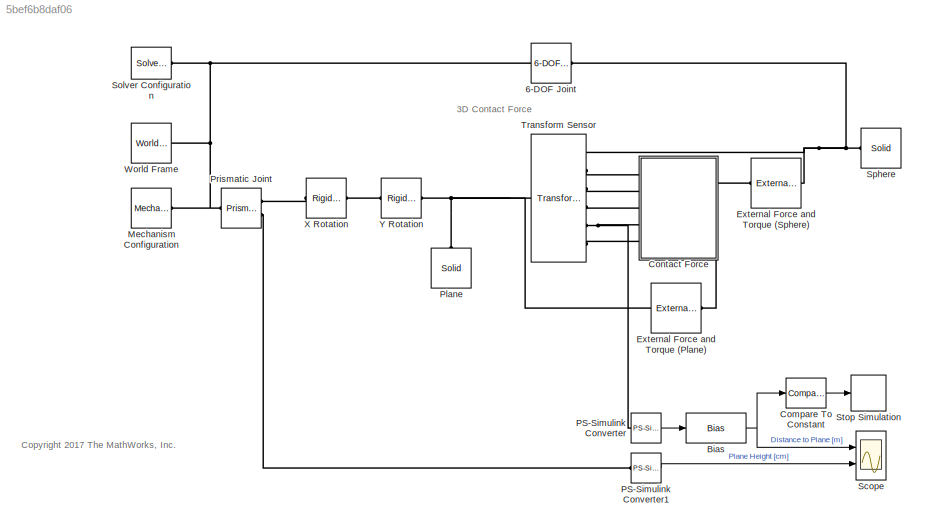
MODEL slx_5bef6b8daf06
KIND model
CONFIG AbsTol = auto
CONFIG EnableMultiTasking = on
CONFIG FixedStep = auto
CONFIG MaxStep = auto
CONFIG MinStep = auto
CONFIG PreLoadFcn = % Initial sphere position\nx0 = 0; % m\ny0 = 0; % m\nz0 = 5; % m\n\n% Plane dimensions\nxPlane = 20; % m\nyPlane = 20; % m\n\n% Plane rotation\nxRot = 15; % deg\nyRot = 10; % deg\n\n% Sphere dimensions\nsphRad = 0.5; % m
CONFIG RelTol = 1e-3
CONFIG SampleTimeConstraint = Unconstrained
CONFIG Solver = ode23t
CONFIG SolverName = ode23t
CONFIG StartTime = 0.0
CONFIG StopTime = 10.0
BLOCK [Reference] 6-DOF Joint  REF=sm_lib/Joints/6-DOF Joint
  Ports = [0, 0, 0, 0, 0, 1, 1]
  SourceBlock = sm_lib/Joints/6-DOF Joint
  SourceProductBaseCode = MS
  SourceProductName = Simscape Multibody
  SourceType = 6-DOF Joint
BLOCK [Bias] Bias
  Bias = -sphRad
  SaturateOnIntegerOverflow = off
BLOCK [Reference] Compare To Constant  REF=simulink/Logic and Bit
Operations/Compare
To Constant
  Ports = [1, 1]
  SourceBlock = simulink/Logic and Bit\nOperations/Compare\nTo Constant
  SourceProductBaseCode = SL
  SourceProductName = Simulink
  SourceType = Compare To Constant
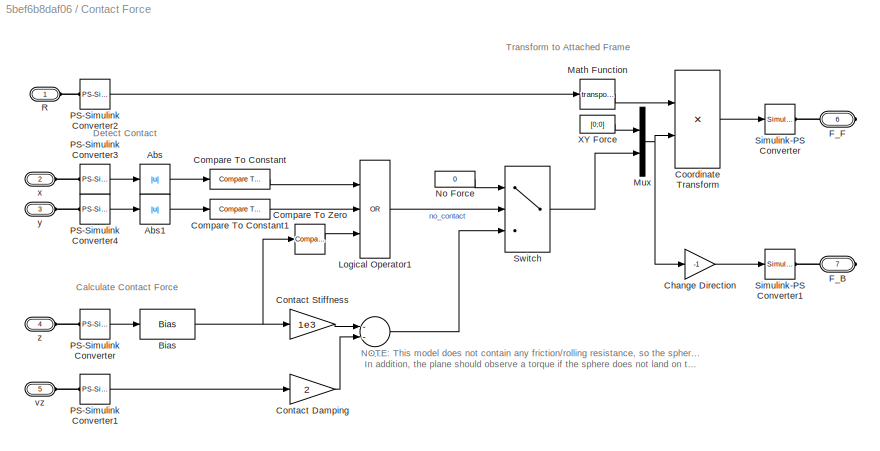
BLOCK [SubSystem] Contact Force
  Ports = [0, 0, 0, 0, 0, 5, 2]
  RequestExecContextInheritance = off
  Variant = off
BLOCK [Abs] Contact Force/Abs
  SaturateOnIntegerOverflow = off
BLOCK [Abs] Contact Force/Abs1
  SaturateOnIntegerOverflow = off
BLOCK [Sum] Contact Force/Add
  InputSameDT = off
  Inputs = --
  OutDataTypeStr = Inherit: Inherit via internal rule
  Ports = [2, 1]
  SaturateOnIntegerOverflow = off
BLOCK [Bias] Contact Force/Bias
  Bias = -sphRad
  SaturateOnIntegerOverflow = off
BLOCK [Gain] Contact Force/Change Direction
  Gain = -1
  OutDataTypeStr = Inherit: Inherit via internal rule
  ParamDataTypeStr = Inherit: Inherit via internal rule
  SaturateOnIntegerOverflow = off
BLOCK [Reference] Contact Force/Compare To Constant  REF=simulink/Logic and Bit
Operations/Compare
To Constant
  Ports = [1, 1]
  SourceBlock = simulink/Logic and Bit\nOperations/Compare\nTo Constant
  SourceProductBaseCode = SL
  SourceProductName = Simulink
  SourceType = Compare To Constant
BLOCK [Reference] Contact Force/Compare To Constant1  REF=simulink/Logic and Bit
Operations/Compare
To Constant
  Ports = [1, 1]
  SourceBlock = simulink/Logic and Bit\nOperations/Compare\nTo Constant
  SourceProductBaseCode = SL
  SourceProductName = Simulink
  SourceType = Compare To Constant
BLOCK [Reference] Contact Force/Compare To Zero  REF=simulink/Logic and Bit
Operations/Compare
To Zero
  Ports = [1, 1]
  SourceBlock = simulink/Logic and Bit\nOperations/Compare\nTo Zero
  SourceProductBaseCode = SL
  SourceProductName = Simulink
  SourceType = Compare To Zero
BLOCK [Gain] Contact Force/Contact Damping
  Gain = 2
  OutDataTypeStr = Inherit: Inherit via internal rule
  ParamDataTypeStr = Inherit: Inherit via internal rule
  SaturateOnIntegerOverflow = off
BLOCK [Gain] Contact Force/Contact Stiffness
  Gain = 1e3
  OutDataTypeStr = Inherit: Inherit via internal rule
  ParamDataTypeStr = Inherit: Inherit via internal rule
  SaturateOnIntegerOverflow = off
BLOCK [Product] Contact Force/Coordinate Transform
  InputSameDT = off
  Multiplication = Matrix(*)
  OutDataTypeStr = Inherit: Inherit via internal rule
  Ports = [2, 1]
  RndMeth = Floor
  SaturateOnIntegerOverflow = off
BLOCK [PMIOPort] Contact Force/F_B
  Port = 7
  Side = Right
BLOCK [PMIOPort] Contact Force/F_F
  Port = 6
  Side = Right
BLOCK [Logic] Contact Force/Logical Operator1
  AllPortsSameDT = off
  Inputs = 3
  Operator = OR
  OutDataTypeStr = boolean
  Ports = [3, 1]
BLOCK [Math] Contact Force/Math Function
  Operator = transpose
  Ports = [1, 1]
BLOCK [Mux] Contact Force/Mux
  DisplayOption = bar
  Inputs = 2
  Ports = [2, 1]
BLOCK [Constant] Contact Force/No Force
  Value = 0
BLOCK [Reference] Contact Force/PS-Simulink Converter  REF=nesl_utility/PS-Simulink
Converter
  Ports = [0, 1, 0, 0, 0, 1]
  SourceBlock = nesl_utility/PS-Simulink\nConverter
  SourceProductBaseCode = SS
  SourceProductName = Simscape
  SourceType = PS-Simulink\nConverter
BLOCK [Reference] Contact Force/PS-Simulink Converter1  REF=nesl_utility/PS-Simulink
Converter
  Ports = [0, 1, 0, 0, 0, 1]
  SourceBlock = nesl_utility/PS-Simulink\nConverter
  SourceProductBaseCode = SS
  SourceProductName = Simscape
  SourceType = PS-Simulink\nConverter
BLOCK [Reference] Contact Force/PS-Simulink Converter2  REF=nesl_utility/PS-Simulink
Converter
  Ports = [0, 1, 0, 0, 0, 1]
  SourceBlock = nesl_utility/PS-Simulink\nConverter
  SourceProductBaseCode = SS
  SourceProductName = Simscape
  SourceType = PS-Simulink\nConverter
BLOCK [Reference] Contact Force/PS-Simulink Converter3  REF=nesl_utility/PS-Simulink
Converter
  Ports = [0, 1, 0, 0, 0, 1]
  SourceBlock = nesl_utility/PS-Simulink\nConverter
  SourceProductBaseCode = SS
  SourceProductName = Simscape
  SourceType = PS-Simulink\nConverter
BLOCK [Reference] Contact Force/PS-Simulink Converter4  REF=nesl_utility/PS-Simulink
Converter
  Ports = [0, 1, 0, 0, 0, 1]
  SourceBlock = nesl_utility/PS-Simulink\nConverter
  SourceProductBaseCode = SS
  SourceProductName = Simscape
  SourceType = PS-Simulink\nConverter
BLOCK [PMIOPort] Contact Force/R
  Port = 1
  Side = Left
BLOCK [Reference] Contact Force/Simulink-PS Converter  REF=nesl_utility/Simulink-PS
Converter
  Ports = [1, 0, 0, 0, 0, 0, 1]
  SourceBlock = nesl_utility/Simulink-PS\nConverter
  SourceProductBaseCode = SS
  SourceProductName = Simscape
  SourceType = Simulink-PS\nConverter
BLOCK [Reference] Contact Force/Simulink-PS Converter1  REF=nesl_utility/Simulink-PS
Converter
  Ports = [1, 0, 0, 0, 0, 0, 1]
  SourceBlock = nesl_utility/Simulink-PS\nConverter
  SourceProductBaseCode = SS
  SourceProductName = Simscape
  SourceType = Simulink-PS\nConverter
BLOCK [Switch] Contact Force/Switch
  Criteria = u2 > Threshold
  InputSameDT = off
  SaturateOnIntegerOverflow = off
BLOCK [Constant] Contact Force/XY Force
  Value = [0;0]
BLOCK [PMIOPort] Contact Force/vz
  Port = 5
  Side = Left
BLOCK [PMIOPort] Contact Force/x
  Port = 2
  Side = Left
BLOCK [PMIOPort] Contact Force/y
  Port = 3
  Side = Left
BLOCK [PMIOPort] Contact Force/z
  Port = 4
  Side = Left
BLOCK [Reference] External Force and Torque (Plane)  REF=sm_lib/Forces and
Torques/External Force
and Torque
  Ports = [0, 0, 0, 0, 0, 1, 1]
  SourceBlock = sm_lib/Forces and\nTorques/External Force\nand Torque
  SourceProductBaseCode = MS
  SourceProductName = Simscape Multibody
  SourceType = External Force\nand Torque
BLOCK [Reference] External Force and Torque (Sphere)  REF=sm_lib/Forces and
Torques/External Force
and Torque
  Ports = [0, 0, 0, 0, 0, 1, 1]
  SourceBlock = sm_lib/Forces and\nTorques/External Force\nand Torque
  SourceProductBaseCode = MS
  SourceProductName = Simscape Multibody
  SourceType = External Force\nand Torque
BLOCK [Reference] Mechanism Configuration  REF=sm_lib/Utilities/Mechanism
Configuration
  Ports = [0, 0, 0, 0, 0, 0, 1]
  SourceBlock = sm_lib/Utilities/Mechanism\nConfiguration
  SourceProductBaseCode = MS
  SourceProductName = Simscape Multibody
  SourceType = Mechanism\nConfiguration
BLOCK [Reference] PS-Simulink Converter  REF=nesl_utility/PS-Simulink
Converter
  Ports = [0, 1, 0, 0, 0, 1]
  SourceBlock = nesl_utility/PS-Simulink\nConverter
  SourceProductBaseCode = SS
  SourceProductName = Simscape
  SourceType = PS-Simulink\nConverter
BLOCK [Reference] PS-Simulink Converter1  REF=nesl_utility/PS-Simulink
Converter
  Ports = [0, 1, 0, 0, 0, 1]
  SourceBlock = nesl_utility/PS-Simulink\nConverter
  SourceProductBaseCode = SS
  SourceProductName = Simscape
  SourceType = PS-Simulink\nConverter
BLOCK [Reference] Plane  REF=sm_lib/Body Elements/Solid
  Ports = [0, 0, 0, 0, 0, 0, 1]
  SourceBlock = sm_lib/Body Elements/Solid
  SourceProductBaseCode = MS
  SourceProductName = Simscape Multibody
  SourceType = Solid
BLOCK [Reference] Prismatic Joint  REF=sm_lib/Joints/Prismatic
Joint
  Ports = [0, 0, 0, 0, 0, 1, 2]
  SourceBlock = sm_lib/Joints/Prismatic\nJoint
  SourceProductBaseCode = MS
  SourceProductName = Simscape Multibody
  SourceType = Prismatic\nJoint
BLOCK [Scope] Scope
  NumInputPorts = 2
  Ports = [2]
  ScopeSpecificationString = Simulink.scopes.TimeScopeBlockCfg('CurrentConfiguration', extmgr.ConfigurationSet(extmgr.Configuration('Core','General UI',true),extmgr.Configuration('Core','Source UI',true),extmgr.Configuration('Sources','WiredSimulink',true,'DataLoggingSaveFormat','Array','DataLoggingDecimation','1','DataLoggingDecimateData',true),extmgr.Configuration('Visuals','Time Domain',true,'SerializedDisplays',{struct('M...<+2268ch>
BLOCK [Reference] Solver Configuration  REF=nesl_utility/Solver
Configuration
  Ports = [0, 0, 0, 0, 0, 0, 1]
  SourceBlock = nesl_utility/Solver\nConfiguration
  SourceProductBaseCode = SS
  SourceProductName = Simscape
  SourceType = Solver\nConfiguration
BLOCK [Reference] Sphere  REF=sm_lib/Body Elements/Solid
  Ports = [0, 0, 0, 0, 0, 0, 1]
  SourceBlock = sm_lib/Body Elements/Solid
  SourceProductBaseCode = MS
  SourceProductName = Simscape Multibody
  SourceType = Solid
BLOCK [Stop] Stop Simulation
BLOCK [Reference] Transform Sensor  REF=sm_lib/Frames and
Transforms/Transform
Sensor
  Ports = [0, 0, 0, 0, 0, 1, 6]
  SourceBlock = sm_lib/Frames and\nTransforms/Transform\nSensor
  SourceProductBaseCode = MS
  SourceProductName = Simscape Multibody
  SourceType = Transform\nSensor
BLOCK [Reference] World Frame  REF=sm_lib/Frames and
Transforms/World Frame
  Ports = [0, 0, 0, 0, 0, 0, 1]
  SourceBlock = sm_lib/Frames and\nTransforms/World Frame
  SourceProductBaseCode = MS
  SourceProductName = Simscape Multibody
  SourceType = World Frame
BLOCK [Reference] X Rotation  REF=sm_lib/Frames and
Transforms/Rigid
Transform
  Ports = [0, 0, 0, 0, 0, 1, 1]
  SourceBlock = sm_lib/Frames and\nTransforms/Rigid\nTransform
  SourceProductBaseCode = MS
  SourceProductName = Simscape Multibody
  SourceType = Rigid\nTransform
BLOCK [Reference] Y Rotation  REF=sm_lib/Frames and
Transforms/Rigid
Transform
  Ports = [0, 0, 0, 0, 0, 1, 1]
  SourceBlock = sm_lib/Frames and\nTransforms/Rigid\nTransform
  SourceProductBaseCode = MS
  SourceProductName = Simscape Multibody
  SourceType = Rigid\nTransform
ANNOTATION (root): 3D Contact Force
ANNOTATION (root): <copyright redacted>
ANNOTATION Contact Force: NOTE: This model does not contain any friction/rolling resistance, so the sphere will not rotate. In addition, the plane should observe a torque if the sphere does not land on the plane's center of mass. For simplicity, this effect is not included.
ANNOTATION Contact Force: Calculate Contact Force
ANNOTATION Contact Force: Detect Contact
ANNOTATION Contact Force: Transform to Attached Frame
NET Bias:1 -> Compare To Constant:1, Scope:1
LINE Compare To Constant:1 -> Stop Simulation:1
LINE Contact Force/Abs1:1 -> Contact Force/Compare To Constant1:1
LINE Contact Force/Abs:1 -> Contact Force/Compare To Constant:1
LINE Contact Force/Add:1 -> Contact Force/Switch:3
NET Contact Force/Bias:1 -> Contact Force/Compare To Zero:1, Contact Force/Contact Stiffness:1
LINE Contact Force/Change Direction:1 -> Contact Force/Simulink-PS Converter1:1
LINE Contact Force/Compare To Constant1:1 -> Contact Force/Logical Operator1:2
LINE Contact Force/Compare To Constant:1 -> Contact Force/Logical Operator1:1
LINE Contact Force/Compare To Zero:1 -> Contact Force/Logical Operator1:3
LINE Contact Force/Contact Damping:1 -> Contact Force/Add:2
LINE Contact Force/Contact Stiffness:1 -> Contact Force/Add:1
LINE Contact Force/Coordinate Transform:1 -> Contact Force/Simulink-PS Converter:1
LINE Contact Force/Logical Operator1:1 -> Contact Force/Switch:2
LINE Contact Force/Math Function:1 -> Contact Force/Coordinate Transform:1
NET Contact Force/Mux:1 -> Contact Force/Change Direction:1, Contact Force/Coordinate Transform:2
LINE Contact Force/No Force:1 -> Contact Force/Switch:1
LINE Contact Force/PS-Simulink Converter1:1 -> Contact Force/Contact Damping:1
LINE Contact Force/PS-Simulink Converter2:1 -> Contact Force/Math Function:1
LINE Contact Force/PS-Simulink Converter3:1 -> Contact Force/Abs:1
LINE Contact Force/PS-Simulink Converter4:1 -> Contact Force/Abs1:1
LINE Contact Force/PS-Simulink Converter:1 -> Contact Force/Bias:1
LINE Contact Force/Switch:1 -> Contact Force/Mux:2
LINE Contact Force/XY Force:1 -> Contact Force/Mux:1
LINE PS-Simulink Converter1:1 -> Scope:2
LINE PS-Simulink Converter:1 -> Bias:1
PNET net1: 6-DOF Joint:LConn1 -- Mechanism Configuration:RConn1 -- Prismatic Joint:LConn1 -- Solver Configuration:RConn1 -- World Frame:RConn1
PNET net2: 6-DOF Joint:RConn1 -- External Force and Torque (Sphere):RConn1 -- Sphere:RConn1 -- Transform Sensor:RConn1
PLINE Contact Force/F_B:RConn1 -- Contact Force/Simulink-PS Converter1:RConn1
PLINE Contact Force/F_F:RConn1 -- Contact Force/Simulink-PS Converter:RConn1
PLINE Contact Force/PS-Simulink Converter1:LConn1 -- Contact Force/vz:RConn1
PLINE Contact Force/PS-Simulink Converter2:LConn1 -- Contact Force/R:RConn1
PLINE Contact Force/PS-Simulink Converter3:LConn1 -- Contact Force/x:RConn1
PLINE Contact Force/PS-Simulink Converter4:LConn1 -- Contact Force/y:RConn1
PLINE Contact Force/PS-Simulink Converter:LConn1 -- Contact Force/z:RConn1
PLINE Contact Force:LConn1 -- Transform Sensor:RConn2
PLINE Contact Force:LConn2 -- Transform Sensor:RConn3
PLINE Contact Force:LConn3 -- Transform Sensor:RConn4
PNET net3: Contact Force:LConn4 -- PS-Simulink Converter:LConn1 -- Transform Sensor:RConn5
PLINE Contact Force:LConn5 -- Transform Sensor:RConn6
PLINE Contact Force:RConn1 -- External Force and Torque (Sphere):LConn1
PLINE Contact Force:RConn2 -- External Force and Torque (Plane):LConn1
PNET net4: External Force and Torque (Plane):RConn1 -- Plane:RConn1 -- Transform Sensor:LConn1 -- Y Rotation:RConn1
PLINE PS-Simulink Converter1:LConn1 -- Prismatic Joint:RConn2
PLINE Prismatic Joint:RConn1 -- X Rotation:LConn1
PLINE X Rotation:RConn1 -- Y Rotation:LConn1
note: NET lines group one-source signal fan-out (src -> all destinations, sorted); 1:1 wires keep LINE; PNET lines group multi-terminal physical nets as a canonical sorted terminal list (undirected conserving connections); 2-terminal nets keep the pairwise PLINE form
